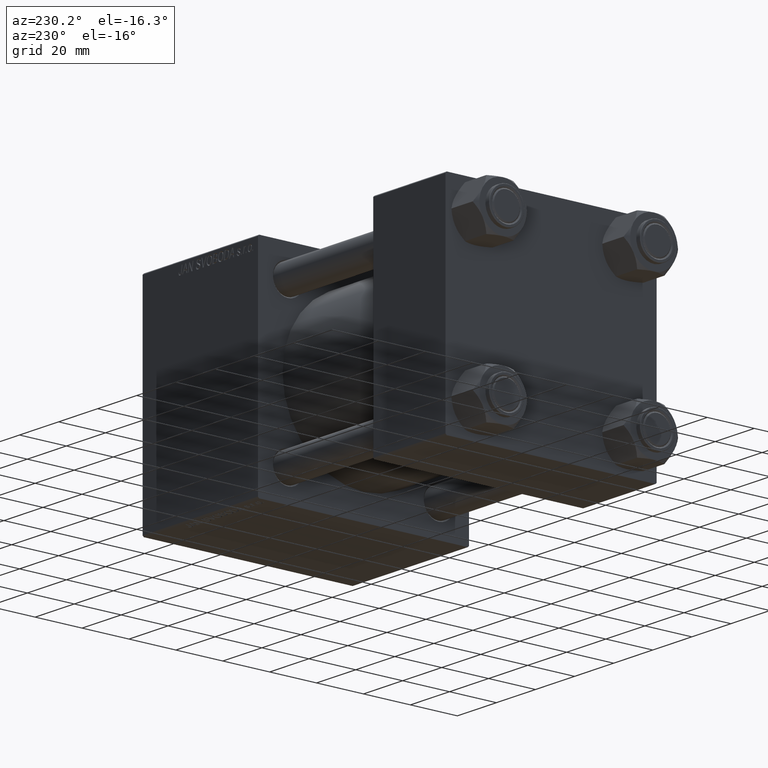
[diagram: clean part render]
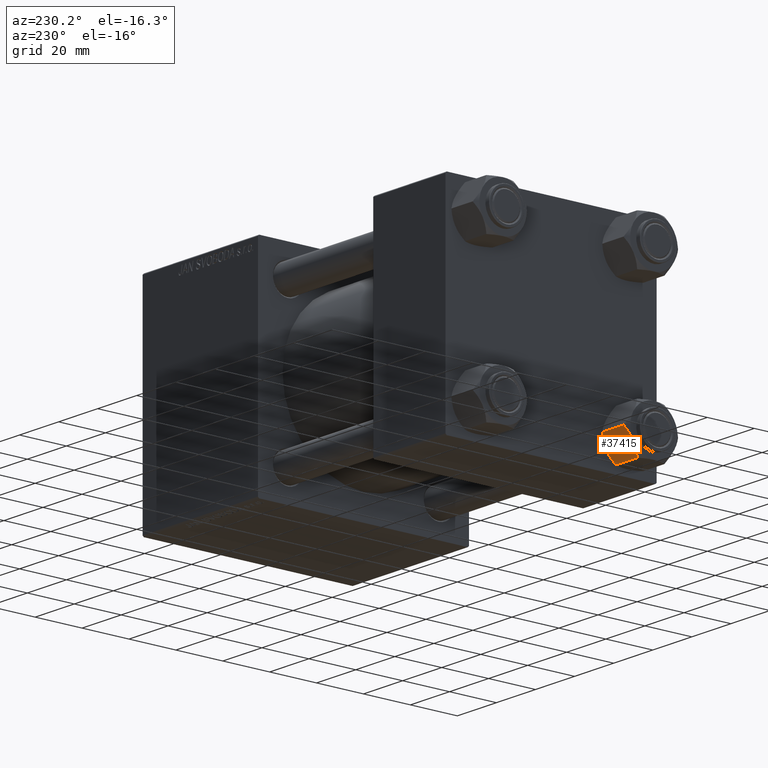
[diagram: same view with one face highlighted and labeled with its STEP entity id]
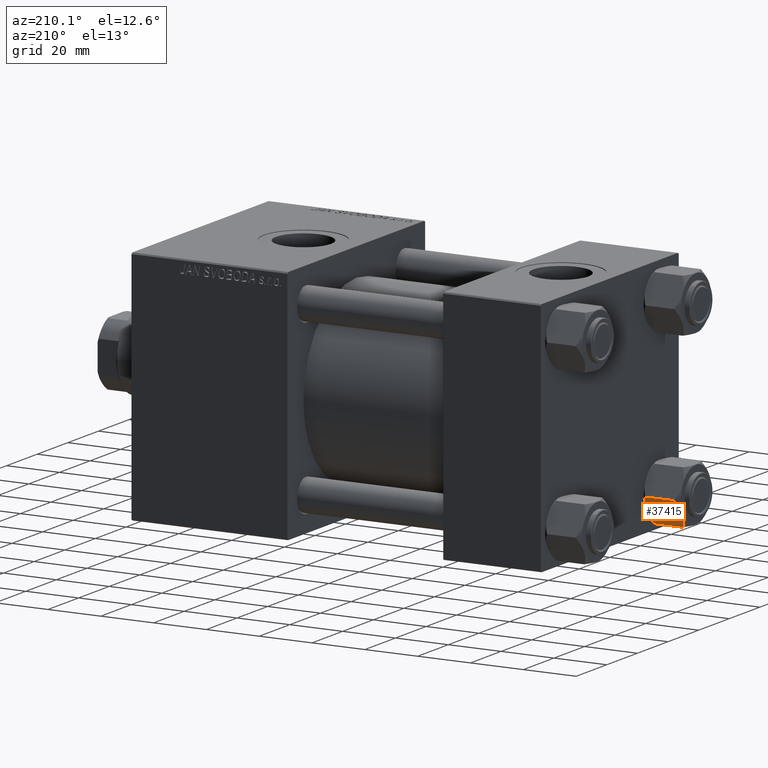
[diagram: same view with one face highlighted and labeled with its STEP entity id]
A machine part, auxiliary view. The second image highlights one B-rep face of the part: STEP entity #37415.
A second angle (auxiliary view) of the same face is appended — the face is thin or edge-on in the first view.
In plain terms, the highlighted planar face has unit normal (0, -0.866, 0.5).
Its self-contained STEP definition (entity closure, byte-faithful):
#206 = FACE_OUTER_BOUND ( 'NONE', #42386, .T. ) ;
#239 = ORIENTED_EDGE ( 'NONE', *, *, #18142, .T. ) ;
#729 = CARTESIAN_POINT ( 'NONE',  ( 11.62000000000000099, -1.924525737834042474E-15, -1.556784808024813893 ) ) ;
#775 = B_SPLINE_CURVE_WITH_KNOTS ( 'NONE', 3,
 ( #12138, #28105, #39533, #34979, #16671, #12624, #32176, #23804 ),
 .UNSPECIFIED., .F., .F.,
 ( 4, 2, 2, 4 ),
 ( 2.544312114902182352E-07, 0.003011550106433539056, 0.004517197944044561847, 0.006022845781655586372 ),
 .UNSPECIFIED. ) ;
#826 = DIRECTION ( 'NONE',  ( -0.000000000000000000, -0.000000000000000000, 1.000000000000000000 ) ) ;
#2962 = CARTESIAN_POINT ( 'NONE',  ( 11.16445427487471775, -0.7890283410877989567, -12.89876091710046424 ) ) ;
#3214 = VERTEX_POINT ( 'NONE', #32643 ) ;
#3670 = CARTESIAN_POINT ( 'NONE',  ( 11.62000000000000099, -1.795242522838921761E-15, -12.44321519197518455 ) ) ;
#3721 = CARTESIAN_POINT ( 'NONE',  ( 10.69859855102500745, -1.595914123792264050, -13.28585617404753094 ) ) ;
#5090 = VERTEX_POINT ( 'NONE', #30172 ) ;
#5656 = CARTESIAN_POINT ( 'NONE',  ( 10.69662495661650503, -1.599332489581334560, -0.7114554706434483844 ) ) ;
#6808 = EDGE_CURVE ( 'NONE', #8162, #5090, #34656, .T. ) ;
#8162 = VERTEX_POINT ( 'NONE', #3670 ) ;
#8685 = CARTESIAN_POINT ( 'NONE',  ( 5.810000000000000497, -10.06321519197517667, -14.00000000000000000 ) ) ;
#9962 = CARTESIAN_POINT ( 'NONE',  ( 11.62000000000000099, -1.924525737834042474E-15, -1.556784808024813893 ) ) ;
#10579 = CARTESIAN_POINT ( 'NONE',  ( 11.62000000000000099, -1.795242522838921761E-15, -12.44321519197518455 ) ) ;
#12123 = CARTESIAN_POINT ( 'NONE',  ( 11.62000000000000099, -1.813166800014576593E-15, -14.00000000000000000 ) ) ;
#12138 = CARTESIAN_POINT ( 'NONE',  ( 5.810000000000000497, -10.06321519197517667, -1.556784808024811895 ) ) ;
#12624 = CARTESIAN_POINT ( 'NONE',  ( 8.202333004087897450, -5.919572880271052995, -0.03994118060690592109 ) ) ;
#13019 = AXIS2_PLACEMENT_3D ( 'NONE', #12123, #19979, #16421 ) ;
#16421 = DIRECTION ( 'NONE',  ( -0.5000000000000001110, -0.8660254037844384856, 0.000000000000000000 ) ) ;
#16671 = CARTESIAN_POINT ( 'NONE',  ( 7.700834831386344170, -6.788193195293096061, -0.1903979688073396681 ) ) ;
#18142 = EDGE_CURVE ( 'NONE', #8162, #49229, #42421, .T. ) ;
#18348 = CARTESIAN_POINT ( 'NONE',  ( 8.715000000000003411, -5.031607595987592774, 0.000000000000000000 ) ) ;
#18621 = EDGE_CURVE ( 'NONE', #39113, #21352, #775, .T. ) ;
#19074 = B_SPLINE_CURVE_WITH_KNOTS ( 'NONE', 3,
 ( #38499, #37737, #38257, #34683, #19204, #50198 ),
 .UNSPECIFIED., .F., .F.,
 ( 4, 2, 4 ),
 ( 0.006022845781655588975, 0.009013049135303635023, 0.01200325248895167674 ),
 .UNSPECIFIED. ) ;
#19186 = CARTESIAN_POINT ( 'NONE',  ( 8.715000000000001634, -5.031607595987590997, -14.00000000000000000 ) ) ;
#19204 = CARTESIAN_POINT ( 'NONE',  ( 6.265018354709775750, -9.275100283241444643, -12.89823354668504507 ) ) ;
#19979 = DIRECTION ( 'NONE',  ( -0.8660254037844385966, 0.5000000000000002220, 0.000000000000000000 ) ) ;
#20310 = ORIENTED_EDGE ( 'NONE', *, *, #18621, .F. ) ;
#21352 = VERTEX_POINT ( 'NONE', #18348 ) ;
#21590 = ORIENTED_EDGE ( 'NONE', *, *, #6808, .F. ) ;
#22470 = B_SPLINE_CURVE_WITH_KNOTS ( 'NONE', 3,
 ( #32800, #29256, #49046, #5656, #41176, #9962 ),
 .UNSPECIFIED., .F., .F.,
 ( 4, 2, 4 ),
 ( 0.006022845781655586372, 0.009013049135303633289, 0.01200325248895168020 ),
 .UNSPECIFIED. ) ;
#23804 = CARTESIAN_POINT ( 'NONE',  ( 8.715000000000003411, -5.031607595987592774, 0.000000000000000000 ) ) ;
#23862 = VECTOR ( 'NONE', #40980, 1000.000000000000000 ) ;
#26914 = ORIENTED_EDGE ( 'NONE', *, *, #32876, .F. ) ;
#27055 = CARTESIAN_POINT ( 'NONE',  ( 8.969430103550385169, -4.590921729663315354, -14.00000000000000533 ) ) ;
#28105 = CARTESIAN_POINT ( 'NONE',  ( 6.265545725125285514, -9.274186850887382150, -1.101239082899530430 ) ) ;
#29256 = CARTESIAN_POINT ( 'NONE',  ( 9.220295946303432189, -4.156409344131454020, 3.521962994683380021E-15 ) ) ;
#30172 = CARTESIAN_POINT ( 'NONE',  ( 8.715000000000001634, -5.031607595987590997, -14.00000000000000000 ) ) ;
#31761 = VECTOR ( 'NONE', #826, 1000.000000000000000 ) ;
#32176 = CARTESIAN_POINT ( 'NONE',  ( 8.460569896449618099, -5.472293462311865753, 3.427848222766236415E-15 ) ) ;
#32643 = CARTESIAN_POINT ( 'NONE',  ( 5.810000000000000497, -10.06321519197517667, -12.44321519197518633 ) ) ;
#32800 = CARTESIAN_POINT ( 'NONE',  ( 8.715000000000003411, -5.031607595987592774, 0.000000000000000000 ) ) ;
#32876 = EDGE_CURVE ( 'NONE', #5090, #3214, #19074, .T. ) ;
#34656 = B_SPLINE_CURVE_WITH_KNOTS ( 'NONE', 3,
 ( #10579, #2962, #3721, #38480, #49678, #37478, #27055, #19186 ),
 .UNSPECIFIED., .F., .F.,
 ( 4, 2, 2, 4 ),
 ( 2.544312114905217906E-07, 0.003011550106433539490, 0.004517197944044564449, 0.006022845781655588975 ),
 .UNSPECIFIED. ) ;
#34683 = CARTESIAN_POINT ( 'NONE',  ( 6.733375043383497349, -8.463882702393844326, -13.28854452935655139 ) ) ;
#34922 = ORIENTED_EDGE ( 'NONE', *, *, #35483, .F. ) ;
#34979 = CARTESIAN_POINT ( 'NONE',  ( 7.455303369716807182, -7.213466161761383333, -0.3002673809867365540 ) ) ;
#35483 = EDGE_CURVE ( 'NONE', #21352, #49229, #22470, .T. ) ;
#35640 = ORIENTED_EDGE ( 'NONE', *, *, #39616, .F. ) ;
#37415 = ADVANCED_FACE ( 'NONE', ( #206 ), #47162, .F. ) ;
#37478 = CARTESIAN_POINT ( 'NONE',  ( 9.227666995912104042, -4.143642311704127223, -13.96005881939309212 ) ) ;
#37737 = CARTESIAN_POINT ( 'NONE',  ( 8.209704053696569304, -5.906805847843729751, -14.00000000000000711 ) ) ;
#38257 = CARTESIAN_POINT ( 'NONE',  ( 7.713000053756304375, -6.767122412062953174, -13.84547602999601601 ) ) ;
#38480 = CARTESIAN_POINT ( 'NONE',  ( 9.974696630283194310, -2.849749030213795997, -13.69973261901326289 ) ) ;
#38499 = CARTESIAN_POINT ( 'NONE',  ( 8.715000000000001634, -5.031607595987590997, -14.00000000000000000 ) ) ;
#39113 = VERTEX_POINT ( 'NONE', #43888 ) ;
#39152 = LINE ( 'NONE', #8685, #31761 ) ;
#39533 = CARTESIAN_POINT ( 'NONE',  ( 6.731401448974991375, -8.467301068182914392, -0.7141438259524641730 ) ) ;
#39616 = EDGE_CURVE ( 'NONE', #3214, #39113, #39152, .T. ) ;
#40980 = DIRECTION ( 'NONE',  ( -0.000000000000000000, -0.000000000000000000, 1.000000000000000000 ) ) ;
#41176 = CARTESIAN_POINT ( 'NONE',  ( 11.16498164529022574, -0.7881149087337312453, -1.101766453314952487 ) ) ;
#42386 = EDGE_LOOP ( 'NONE', ( #21590, #239, #34922, #20310, #35640, #26914 ) ) ;
#42421 = LINE ( 'NONE', #45978, #23862 ) ;
#43888 = CARTESIAN_POINT ( 'NONE',  ( 5.810000000000000497, -10.06321519197517667, -1.556784808024811895 ) ) ;
#45978 = CARTESIAN_POINT ( 'NONE',  ( 11.62000000000000099, -1.813166800014576593E-15, -14.00000000000000000 ) ) ;
#47162 = PLANE ( 'NONE',  #13019 ) ;
#49046 = CARTESIAN_POINT ( 'NONE',  ( 9.716999946243698005, -3.296092779912227932, -0.1545239700039822972 ) ) ;
#49229 = VERTEX_POINT ( 'NONE', #729 ) ;
#49678 = CARTESIAN_POINT ( 'NONE',  ( 9.729165168613654657, -3.275021996682085490, -13.80960203119266083 ) ) ;
#50198 = CARTESIAN_POINT ( 'NONE',  ( 5.810000000000000497, -10.06321519197517667, -12.44321519197518633 ) ) ;